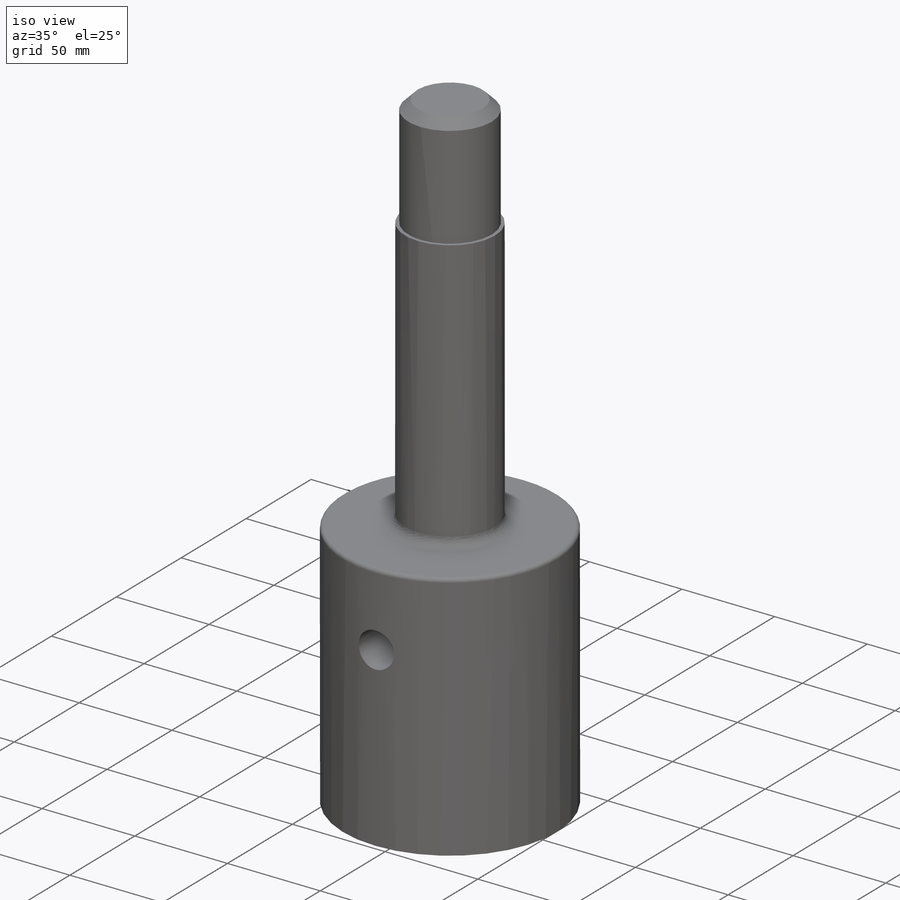
[diagram: iso view]
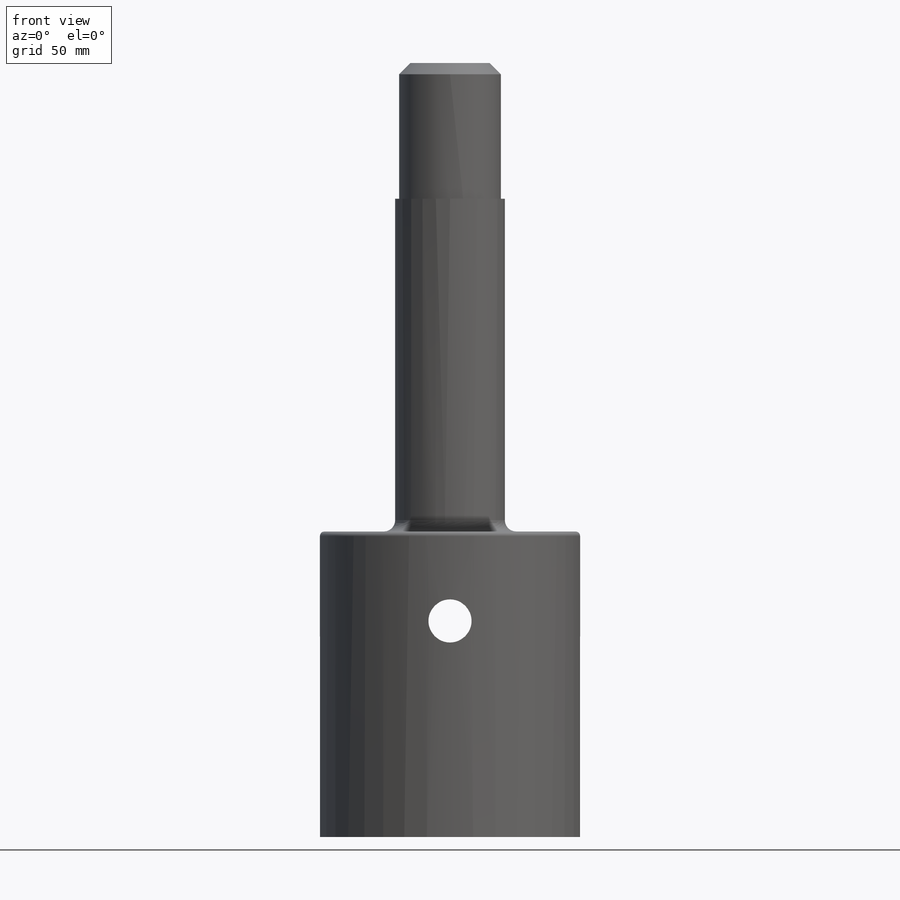
[diagram: front view]
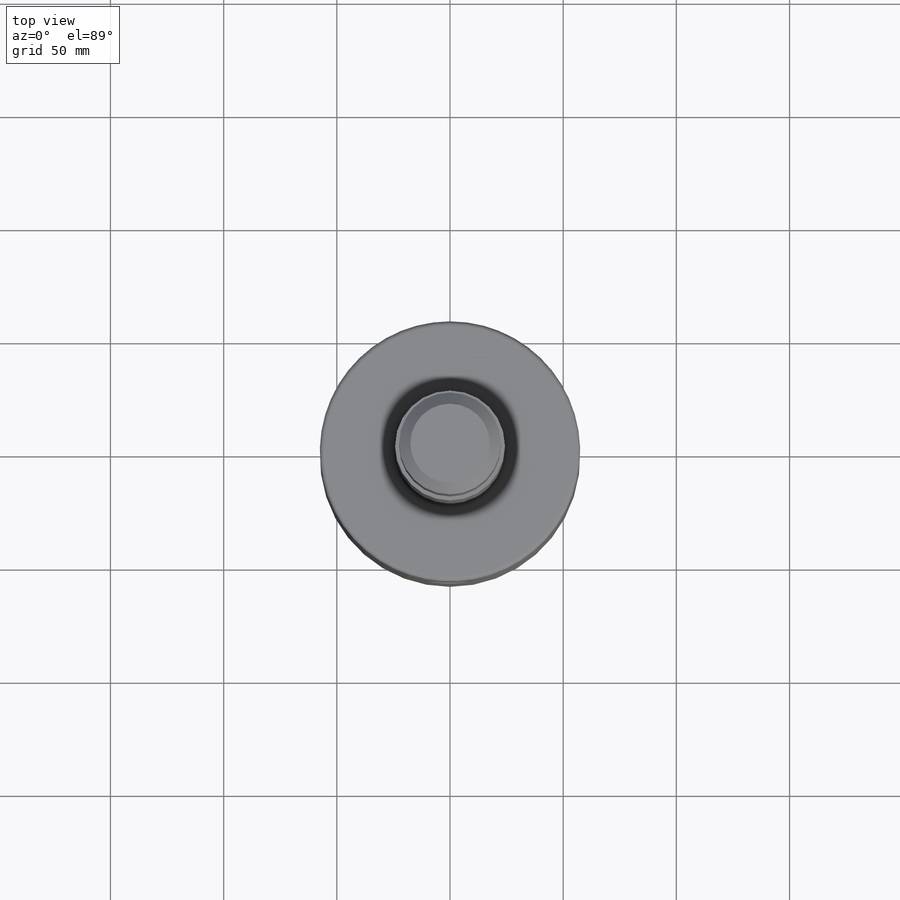
[diagram: top view]
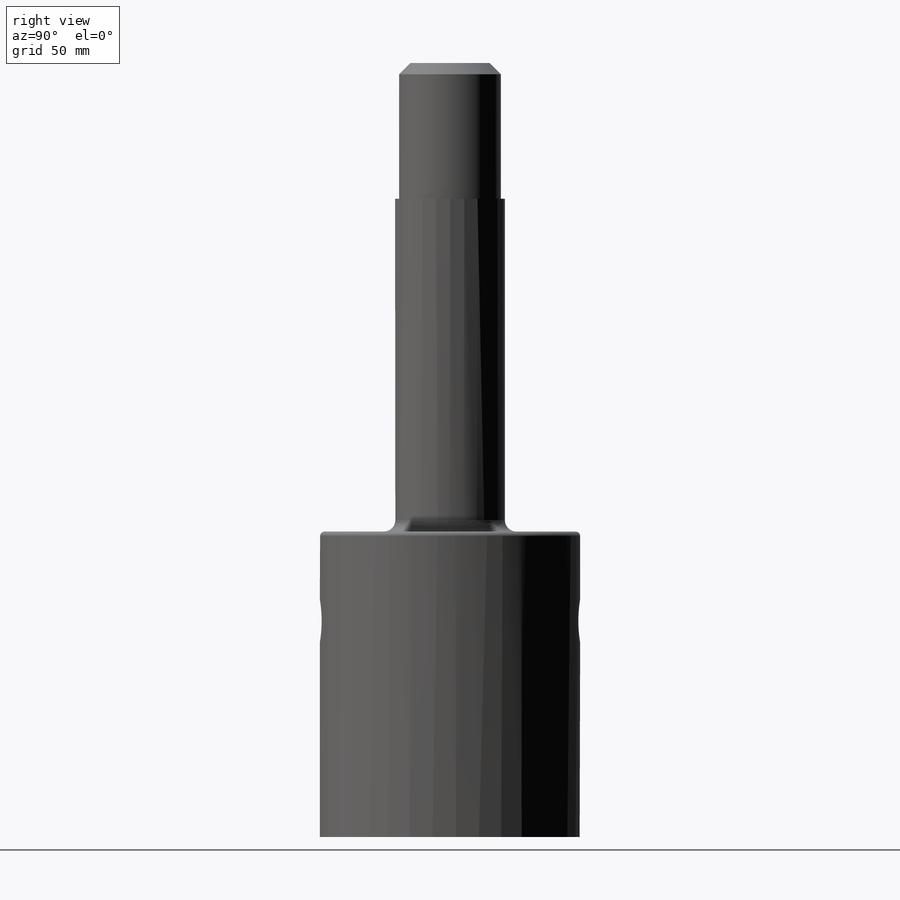
[diagram: right view]
SOLIDWORKS PART (.sldprt)
format: sldprt  version: not decoded by parser v0  size: 184,832 bytes
history: native  units: mm
features: plane x3, fillet x3, sketch x2, material x1, revolve x1, cut_extrude x1, chamfer x1 (+10 scaffold rows collapsed)
feature tree (22):
  scaffold x10  (default folders/planes/origin — collapsed)
  material  "Material <sin especificar>"
  plane  "Alzado"
  plane  "Planta"
  plane  "Vista lateral"
  sketch  "Croquis1"  dims[c1.D1=22.5mm c1.48.5/2=24.25mm c1.115/2=57.5mm c1.D2=35.25mm c1.D3=60.0mm c1.147=147.0mm c1.D4=215.0mm c1.D5=135.0mm c1.D6=8.0mm c2.D4=15.0mm c2.D6=120.0mm]
  revolve  "Revolución2"  Angle=360deg
  fillet  "Redondeo1"  Radius=5mm
  fillet  "Redondeo2"  Radius=2mm
  sketch  "Croquis2"  dims[D1=19.05mm 34.05=24.525mm]
  cut_extrude  "Cortar-Extruir1"  Depth=120mm
  fillet  "Redondeo3"  Radius=2mm
  chamfer  "Chaflán1"  Distance=5mm Angle=45deg
decode coverage: 8 of 8 modeling features carry decoded parameters
note: suppression state not decoded; provenance and decode notes live in map.json
